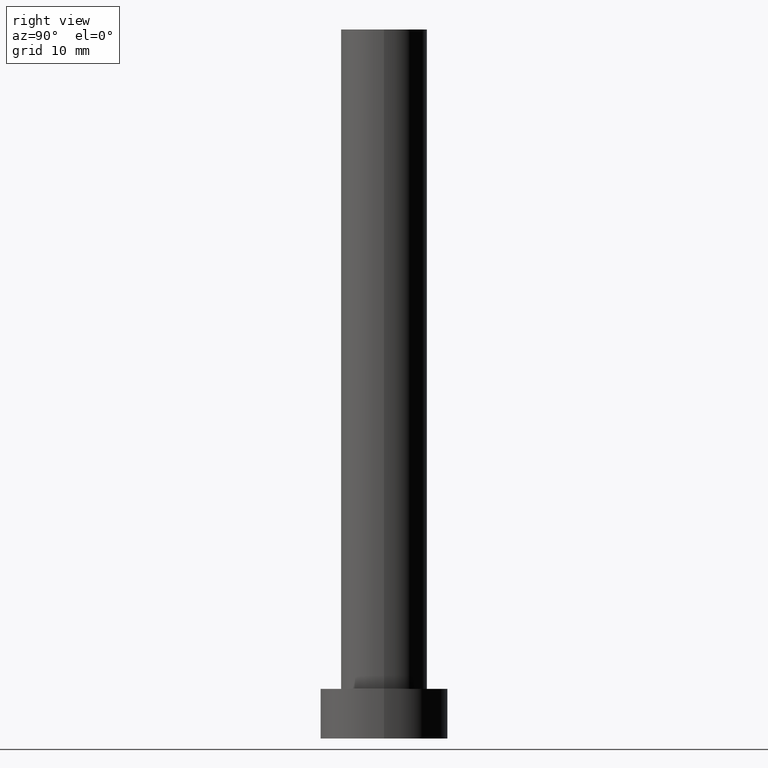
[diagram: clean part render]
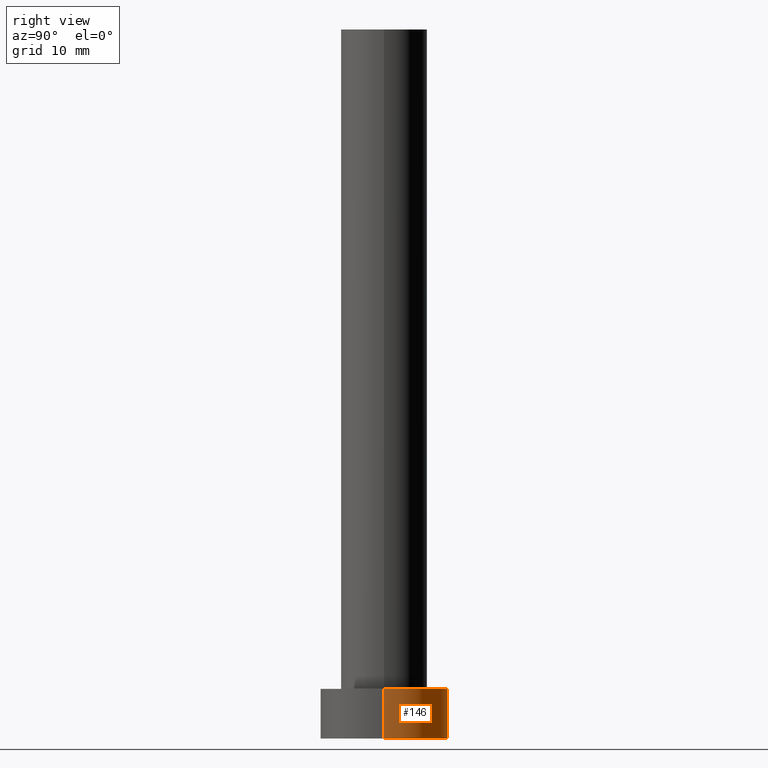
[diagram: same view with one face highlighted and labeled with its STEP entity id]
A machine part, right view. The second image highlights one B-rep face of the part: STEP entity #146.
In plain terms, the highlighted cylindrical surface (partial cylindrical patch) has radius 9 mm, axis along (-0, -0, -1).
Its self-contained STEP definition (entity closure, byte-faithful):
#3 = EDGE_CURVE ( 'NONE', #233, #41, #45, .T. ) ;
#32 = CIRCLE ( 'NONE', #78, 9.000000000000000000 ) ;
#40 = VECTOR ( 'NONE', #165, 1000.000000000000000 ) ;
#41 = VERTEX_POINT ( 'NONE', #105 ) ;
#42 = CARTESIAN_POINT ( 'NONE',  ( 0.000000000000000000, 0.000000000000000000, 0.000000000000000000 ) ) ;
#45 = LINE ( 'NONE', #184, #190 ) ;
#53 = ORIENTED_EDGE ( 'NONE', *, *, #156, .F. ) ;
#61 = EDGE_CURVE ( 'NONE', #234, #41, #32, .T. ) ;
#63 = DIRECTION ( 'NONE',  ( -0.000000000000000000, -0.000000000000000000, -1.000000000000000000 ) ) ;
#65 = CYLINDRICAL_SURFACE ( 'NONE', #231, 9.000000000000000000 ) ;
#66 = CARTESIAN_POINT ( 'NONE',  ( 9.000000000000000000, 1.102182119232617714E-15, 7.000000000000000000 ) ) ;
#78 = AXIS2_PLACEMENT_3D ( 'NONE', #42, #180, #252 ) ;
#82 = DIRECTION ( 'NONE',  ( -0.000000000000000000, -0.000000000000000000, -1.000000000000000000 ) ) ;
#100 = CIRCLE ( 'NONE', #209, 9.000000000000000000 ) ;
#105 = CARTESIAN_POINT ( 'NONE',  ( -9.000000000000000000, 0.000000000000000000, 0.000000000000000000 ) ) ;
#120 = EDGE_LOOP ( 'NONE', ( #53, #125, #155, #198 ) ) ;
#125 = ORIENTED_EDGE ( 'NONE', *, *, #224, .T. ) ;
#127 = FACE_OUTER_BOUND ( 'NONE', #120, .T. ) ;
#128 = CARTESIAN_POINT ( 'NONE',  ( -9.000000000000000000, 0.000000000000000000, 7.000000000000000000 ) ) ;
#130 = DIRECTION ( 'NONE',  ( 1.000000000000000000, 0.000000000000000000, 0.000000000000000000 ) ) ;
#145 = DIRECTION ( 'NONE',  ( -1.000000000000000000, 0.000000000000000000, 0.000000000000000000 ) ) ;
#146 = ADVANCED_FACE ( 'NONE', ( #127 ), #65, .T. ) ;
#147 = CARTESIAN_POINT ( 'NONE',  ( 9.000000000000000000, 1.102182119232617714E-15, 0.000000000000000000 ) ) ;
#155 = ORIENTED_EDGE ( 'NONE', *, *, #61, .T. ) ;
#156 = EDGE_CURVE ( 'NONE', #230, #233, #100, .T. ) ;
#165 = DIRECTION ( 'NONE',  ( -0.000000000000000000, -0.000000000000000000, -1.000000000000000000 ) ) ;
#180 = DIRECTION ( 'NONE',  ( 0.000000000000000000, 0.000000000000000000, 1.000000000000000000 ) ) ;
#184 = CARTESIAN_POINT ( 'NONE',  ( -9.000000000000000000, 0.000000000000000000, 7.000000000000000000 ) ) ;
#190 = VECTOR ( 'NONE', #82, 1000.000000000000000 ) ;
#198 = ORIENTED_EDGE ( 'NONE', *, *, #3, .F. ) ;
#200 = CARTESIAN_POINT ( 'NONE',  ( 0.000000000000000000, 0.000000000000000000, 7.000000000000000000 ) ) ;
#204 = DIRECTION ( 'NONE',  ( 0.000000000000000000, 0.000000000000000000, 1.000000000000000000 ) ) ;
#209 = AXIS2_PLACEMENT_3D ( 'NONE', #200, #204, #130 ) ;
#224 = EDGE_CURVE ( 'NONE', #230, #234, #242, .T. ) ;
#230 = VERTEX_POINT ( 'NONE', #246 ) ;
#231 = AXIS2_PLACEMENT_3D ( 'NONE', #239, #63, #145 ) ;
#233 = VERTEX_POINT ( 'NONE', #128 ) ;
#234 = VERTEX_POINT ( 'NONE', #147 ) ;
#239 = CARTESIAN_POINT ( 'NONE',  ( 0.000000000000000000, 0.000000000000000000, 7.000000000000000000 ) ) ;
#242 = LINE ( 'NONE', #66, #40 ) ;
#246 = CARTESIAN_POINT ( 'NONE',  ( 9.000000000000000000, 1.102182119232617714E-15, 7.000000000000000000 ) ) ;
#252 = DIRECTION ( 'NONE',  ( 1.000000000000000000, 0.000000000000000000, 0.000000000000000000 ) ) ;